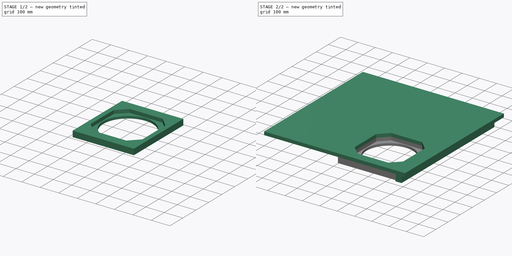
[diagram: build sequence overview — one tinted view per stage of 2, left to right]
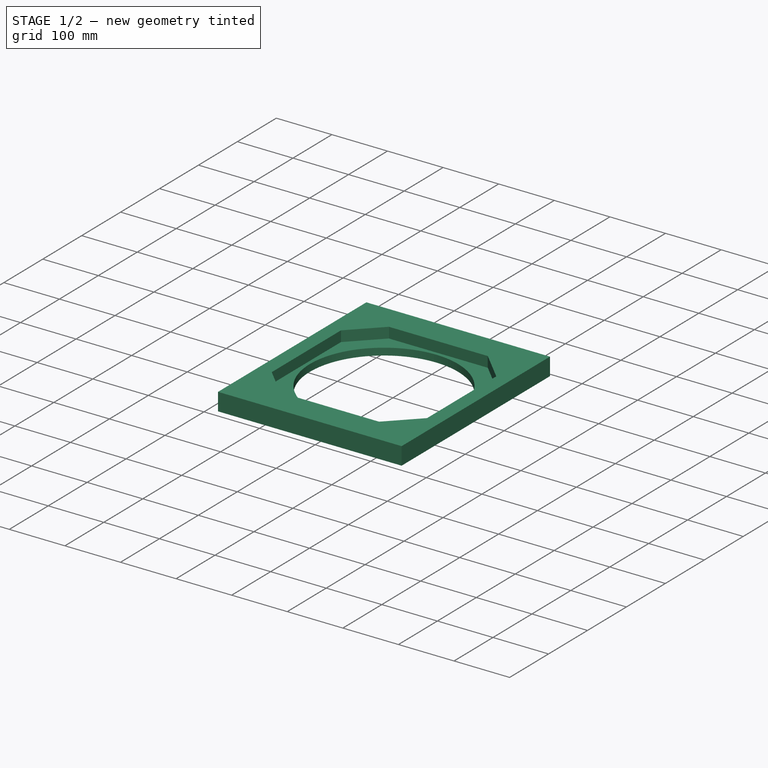
[diagram: stage 1 of 2 — iso view after this stage's code; geometry added in this stage tinted green]
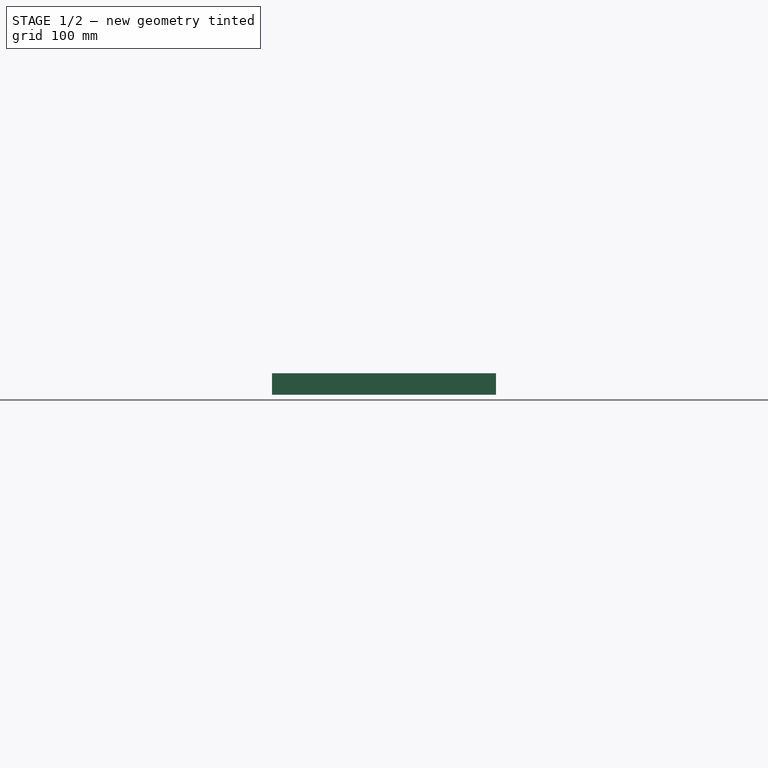
[diagram: stage 1 of 2 — front view after this stage's code; geometry added in this stage tinted green]
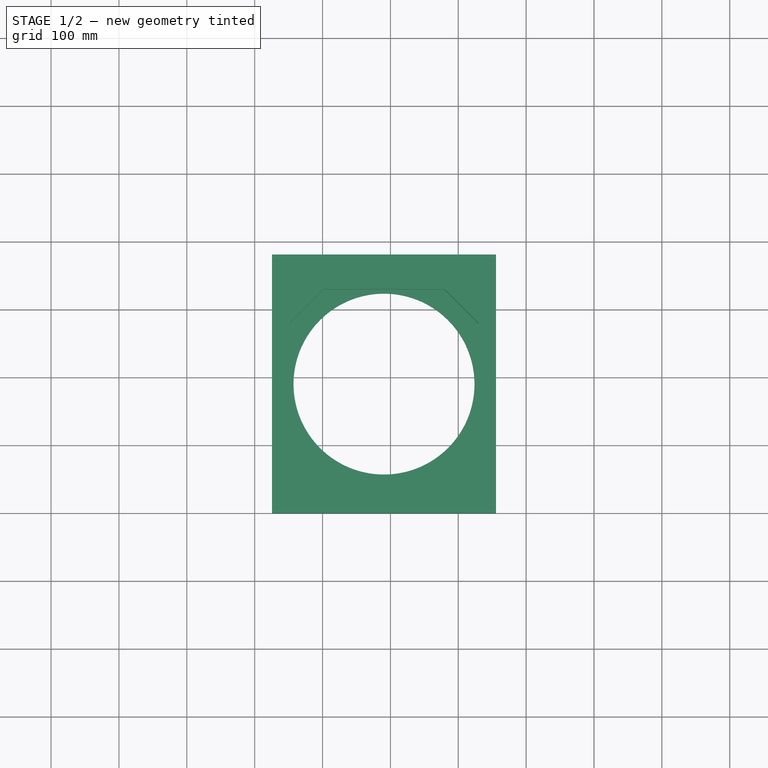
[diagram: stage 1 of 2 — top view after this stage's code; geometry added in this stage tinted green]
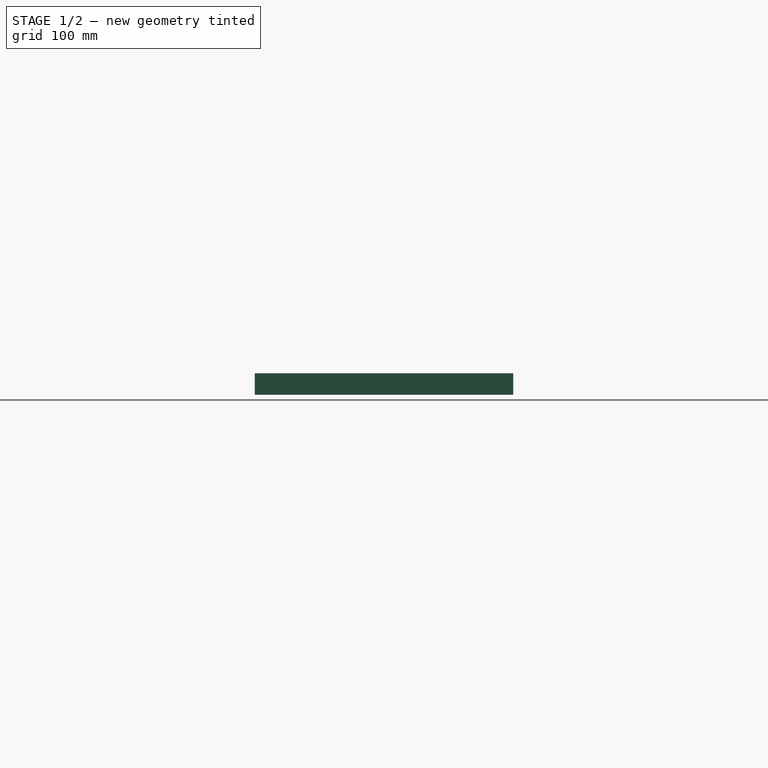
[diagram: stage 1 of 2 — right view after this stage's code; geometry added in this stage tinted green]
FCSTD DOCUMENT  (FreeCAD 0.19R)
Label: Inlet_Wall
License: Creative Commons Attribution
LicenseURL: http://creativecommons.org/licenses/by/4.0/
objects: App::Link×20, Sketcher::SketchObject×4, Part::Extrusion×4, Part::Feature×2, App::LinkGroup×2, App::DocumentObjectGroup×1
note: 10 computed .brp shape members not serialized (recipe doc carries the construction recipe); baked Part::Feature solids carry a one-line shape summary decoded from their .brp

FEATURE [Sketcher::SketchObject] Sketch005  label="Sketch_I_Fan_Mount"
  sketch-geometry (5):
    g0: LineSegment StartX=0 StartY=0 StartZ=0 EndX=330.2 EndY=0 EndZ=0
    g1: LineSegment StartX=330.2 StartY=0 StartZ=0 EndX=330.2 EndY=381 EndZ=0
    g2: LineSegment StartX=330.2 StartY=381 StartZ=0 EndX=0 EndY=381 EndZ=0
    g3: LineSegment StartX=0 StartY=381 StartZ=0 EndX=0 EndY=0 EndZ=0
    g4: Circle CenterX=165.1 CenterY=190.5 CenterZ=0 NormalX=0 NormalY=0 NormalZ=1 AngleXU=0 Radius=133.35
  constraints (13):
    c: Coincident(g0,g1)
    c: Coincident(g1,g2)
    c: Coincident(g2,g3)
    c: Coincident(g3,g0)
    c: Horizontal(g0)
    c: Horizontal(g2)
    c: Vertical(g1)
    c: Vertical(g3)
    c: Coincident(g0,g-1)
    c: DistanceY(g3,g3) = 381
    c: DistanceX(g0,g0) = 330.2
    c: Diameter(g4) = 266.7
    c: Symmetric(g0,g1,g4)
FEATURE [Part::Extrusion] Extrude005  label="Part_I_Fan_Mount"
  Base = -> Sketch005
  Dir = (0,0,1)
  DirMode = 2
  FaceMakerClass = Part::FaceMakerBullseye
  LengthFwd = 12.7
  LengthRev = 0
  Placement = pos=(755.65,0,-19.05) rot=(0,1,0;3.14159rad)
  Solid = true
  Symmetric = false
FEATURE [Sketcher::SketchObject] Sketch007  label="Sketch_H_Inlet_Wall001"
  sketch-geometry (12):
    g0: LineSegment StartX=0 StartY=0 StartZ=0 EndX=330.2 EndY=0 EndZ=0
    g1: LineSegment StartX=330.2 StartY=0 StartZ=0 EndX=330.2 EndY=381 EndZ=0
    g2: LineSegment StartX=330.2 StartY=381 StartZ=0 EndX=0 EndY=381 EndZ=0
    g3: LineSegment StartX=0 StartY=381 StartZ=0 EndX=0 EndY=0 EndZ=0
    g4: LineSegment StartX=304.8 StartY=101.6 StartZ=0 EndX=304.8 EndY=279.4 EndZ=0
    g5: LineSegment StartX=304.8 StartY=279.4 StartZ=0 EndX=254 EndY=330.2 EndZ=0
    g6: LineSegment StartX=254 StartY=330.2 StartZ=0 EndX=76.2 EndY=330.2 EndZ=0
    g7: LineSegment StartX=76.2 StartY=330.2 StartZ=0 EndX=25.4 EndY=279.4 EndZ=0
    g8: LineSegment StartX=25.4 StartY=279.4 StartZ=0 EndX=25.4 EndY=101.6 EndZ=0
    g9: LineSegment StartX=25.4 StartY=101.6 StartZ=0 EndX=76.2 EndY=50.8 EndZ=0
    g10: LineSegment StartX=76.2 StartY=50.8 StartZ=0 EndX=254 EndY=50.8 EndZ=0
    g11: LineSegment StartX=254 StartY=50.8 StartZ=0 EndX=304.8 EndY=101.6 EndZ=0
  constraints (35):
    c: Coincident(g0,g1)
    c: Coincident(g1,g2)
    c: Coincident(g2,g3)
    c: Coincident(g3,g0)
    c: Horizontal(g0)
    c: Horizontal(g2)
    c: Vertical(g1)
    c: Vertical(g3)
    c: Coincident(g0,g-1)
    c: DistanceX(g0,g0) = 330.2
    c: DistanceY(g3,g3) = 381
    c: Vertical(g4)
    c: Coincident(g4,g5)
    c: Coincident(g5,g6)
    c: Horizontal(g6)
    c: Coincident(g6,g7)
    c: Coincident(g7,g8)
    c: Vertical(g8)
    c: Coincident(g8,g9)
    c: Coincident(g9,g10)
    c: Horizontal(g10)
    c: Coincident(g10,g11)
    c: Coincident(g11,g4)
    c: DistanceX(g7,g4) = 279.4
    c: DistanceX(g4,g0) = 25.4
    c: DistanceY(g0,g10) = 50.8
    c: DistanceX(g8,g9) = 50.8
    c: Perpendicular(g11,g9)
    c: Equal(g6,g10)
    c: Equal(g10,g8)
    c: Equal(g8,g4)
    c: Equal(g7,g11)
    c: Equal(g11,g9)
    c: Equal(g9,g5)
    c: DistanceY(g9,g8) = 50.8
FEATURE [Part::Extrusion] Extrude007  label="Fan_Spacer"
  Base = -> Sketch007
  Dir = (0,0,1)
  DirMode = 2
  FaceMakerClass = Part::FaceMakerBullseye
  LengthFwd = 19.05
  LengthRev = 0
  Placement = pos=(755.65,0,4.26e-14) rot=(0,1,0;3.14159rad)
  Solid = true
  Symmetric = false
FEATURE [App::Link] Link  label="IF_A001"
  LinkPlacement = pos=(19.05,2.707e-13,2.27094e-06) rot=(-1,0,0;1.5708rad)
  LinkedObject = -> Extrude006
  Placement = pos=(19.05,2.707e-13,2.27094e-06) rot=(-1,0,0;1.5708rad)
FEATURE [Part::Feature] Screw_w_Washer_B
  Placement = pos=(38.1,25.4,19.05) rot=(0,1,0;3.14159rad)
  shape: bbox 15.88 x 15.88 x 50.8 mm, 35 faces (baked)
FEATURE [App::Link] Link001  label="Screw_w_Washer_B001"
  LinkPlacement = pos=(38.1,736.601,19.05) rot=(0,1,0;3.14159rad)
  LinkedObject = -> Screw_w_Washer_B
  Placement = pos=(38.1,736.601,19.05) rot=(0,1,0;3.14159rad)
FEATURE [App::Link] Link002  label="Screw_w_Washer_B002"
  LinkPlacement = pos=(38.1,152.4,19.05) rot=(1,0,0;3.14159rad)
  LinkedObject = -> Screw_w_Washer_B
  Placement = pos=(38.1,152.4,19.05) rot=(1,0,0;3.14159rad)
FEATURE [App::Link] Link003  label="Screw_w_Washer_B003"
  LinkPlacement = pos=(38.1,609.6,19.0501) rot=(1,0,0;3.14159rad)
  LinkedObject = -> Screw_w_Washer_B
  Placement = pos=(38.1,609.6,19.0501) rot=(1,0,0;3.14159rad)
FEATURE [App::Link] Link004  label="Screw_w_Washer_B004"
  LinkPlacement = pos=(38.1,304.8,19.05) rot=(0,1,0;3.14159rad)
  LinkedObject = -> Screw_w_Washer_B
  Placement = pos=(38.1,304.8,19.05) rot=(0,1,0;3.14159rad)
FEATURE [App::Link] Link005  label="Screw_w_Washer_B005"
  LinkPlacement = pos=(38.1,457.2,19.05) rot=(0,1,0;3.14159rad)
  LinkedObject = -> Screw_w_Washer_B
  Placement = pos=(38.1,457.2,19.05) rot=(0,1,0;3.14159rad)
FEATURE [App::Link] Link006  label="Screw_w_Washer_B006"
  LinkTransform = true
  LinkedObject = -> Screw_w_Washer_B
FEATURE [App::Link] Link007  label="Screw_w_Washer_B007"
  LinkTransform = true
  LinkedObject = -> Link001
FEATURE [App::Link] Link008  label="Screw_w_Washer_B008"
  LinkTransform = true
  LinkedObject = -> Link002
FEATURE [App::Link] Link009  label="Screw_w_Washer_B009"
  LinkTransform = true
  LinkedObject = -> Link003
FEATURE [App::Link] Link010  label="Screw_w_Washer_B010"
  LinkTransform = true
  LinkedObject = -> Link004
FEATURE [App::Link] Link011  label="Screw_w_Washer_B011"
  LinkTransform = true
  LinkedObject = -> Link005
FEATURE [App::LinkGroup] LinkGroup
  ElementList = -> [Link006,Link007,Link008,Link009,Link010,Link011]
  LinkMode = 1
  Placement = pos=(736.6,-6.10352e-05,0) rot=(0,0,1;0rad)
FEATURE [App::Link] Link012  label="Screw_w_Washer_B012"
  LinkPlacement = pos=(450.85,50.8,-31.75) rot=(0,0,1;0rad)
  LinkedObject = -> Screw_w_Washer_B
  Placement = pos=(450.85,50.8,-31.75) rot=(0,0,1;0rad)
FEATURE [App::Link] Link013  label="Screw_w_Washer_B013"
  LinkPlacement = pos=(590.55,355.6,-31.75) rot=(0,0,1;1.5708rad)
  LinkedObject = -> Screw_w_Washer_B
  Placement = pos=(590.55,355.6,-31.75) rot=(0,0,1;1.5708rad)
FEATURE [App::Link] Link014  label="Screw_w_Washer_B014"
  LinkPlacement = pos=(438.15,190.5,-31.75) rot=(0,0,1;3.14159rad)
  LinkedObject = -> Screw_w_Washer_B
  Placement = pos=(438.15,190.5,-31.75) rot=(0,0,1;3.14159rad)
FEATURE [App::Link] Link015  label="Screw_w_Washer_B015"
  LinkPlacement = pos=(450.85,330.2,-31.75) rot=(0,0,-1;1.5708rad)
  LinkedObject = -> Screw_w_Washer_B
  Placement = pos=(450.85,330.2,-31.75) rot=(0,0,-1;1.5708rad)
FEATURE [App::Link] Link016  label="Screw_w_Washer_B016"
  LinkPlacement = pos=(590.55,25.3999,-31.75) rot=(0,0,1;0rad)
  LinkedObject = -> Screw_w_Washer_B
  Placement = pos=(590.55,25.3999,-31.75) rot=(0,0,1;0rad)
FEATURE [App::Link] Link017  label="Screw_w_Washer_B017"
  LinkPlacement = pos=(730.25,50.7999,-31.75) rot=(0,0,1;1.5708rad)
  LinkedObject = -> Screw_w_Washer_B
  Placement = pos=(730.25,50.7999,-31.75) rot=(0,0,1;1.5708rad)
FEATURE [App::Link] Link018  label="Screw_w_Washer_B018"
  LinkPlacement = pos=(742.95,190.5,-31.75) rot=(0,0,1;3.14159rad)
  LinkedObject = -> Screw_w_Washer_B
  Placement = pos=(742.95,190.5,-31.75) rot=(0,0,1;3.14159rad)
FEATURE [App::Link] Link019  label="Screw_w_Washer_B019"
  LinkPlacement = pos=(730.25,330.2,-31.75) rot=(0,0,1;3.14159rad)
  LinkedObject = -> Screw_w_Washer_B
  Placement = pos=(730.25,330.2,-31.75) rot=(0,0,1;3.14159rad)
FEATURE [App::DocumentObjectGroup] Group
  Group = -> [Link012,Link013,Link014,Link015,Link016,Link017,Link018,Link019,Part__Feature,Extrude005,Extrude007]
FEATURE [App::LinkGroup] LinkGroup001
  ElementList = -> [Group]
  LinkMode = 0
  Placement = pos=(3.05176e-05,-0.000106812,6.67572e-05) rot=(0,0,1;0rad)
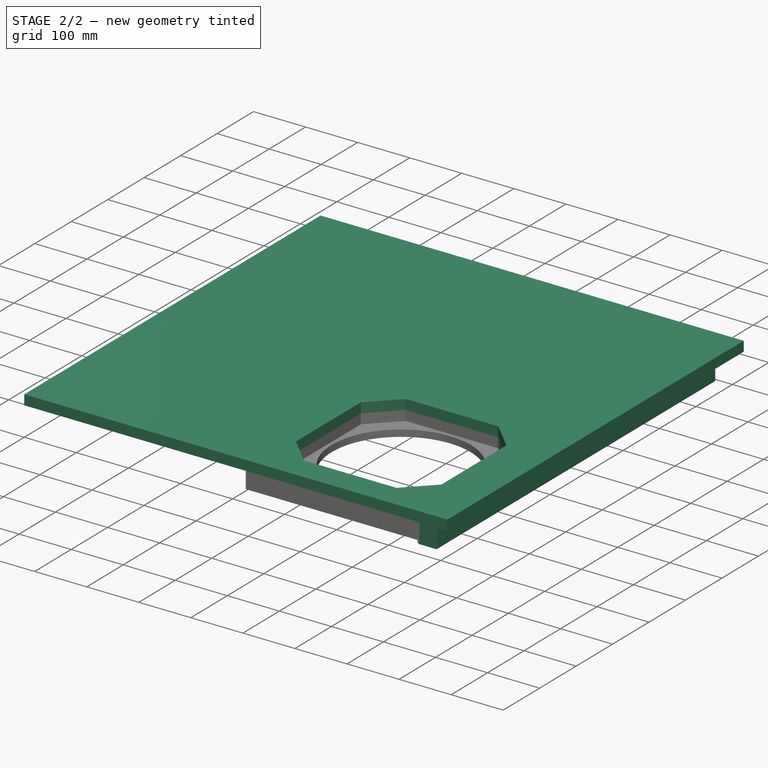
[diagram: stage 2 of 2 — iso view after this stage's code; geometry added in this stage tinted green]
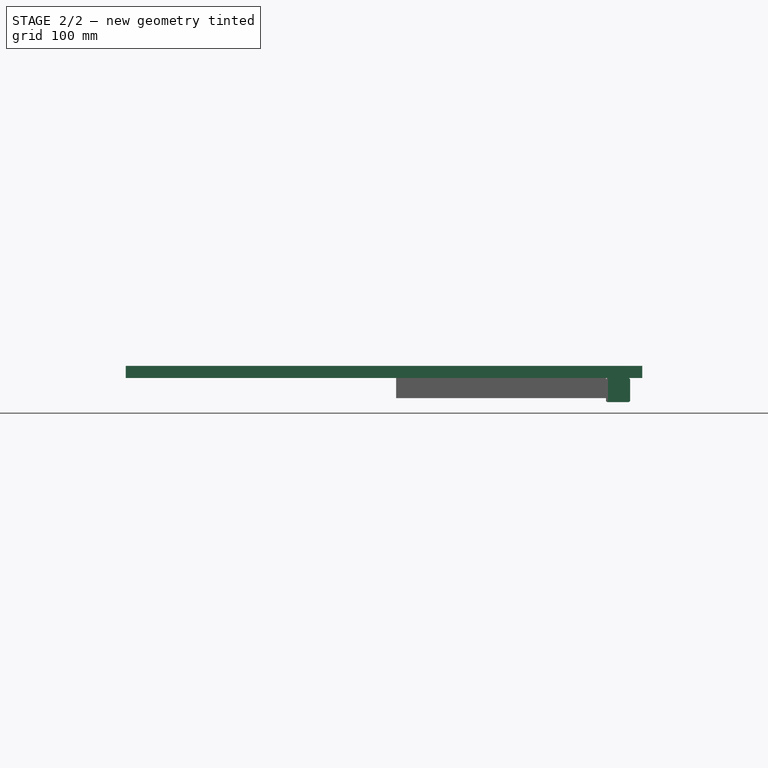
[diagram: stage 2 of 2 — front view after this stage's code; geometry added in this stage tinted green]
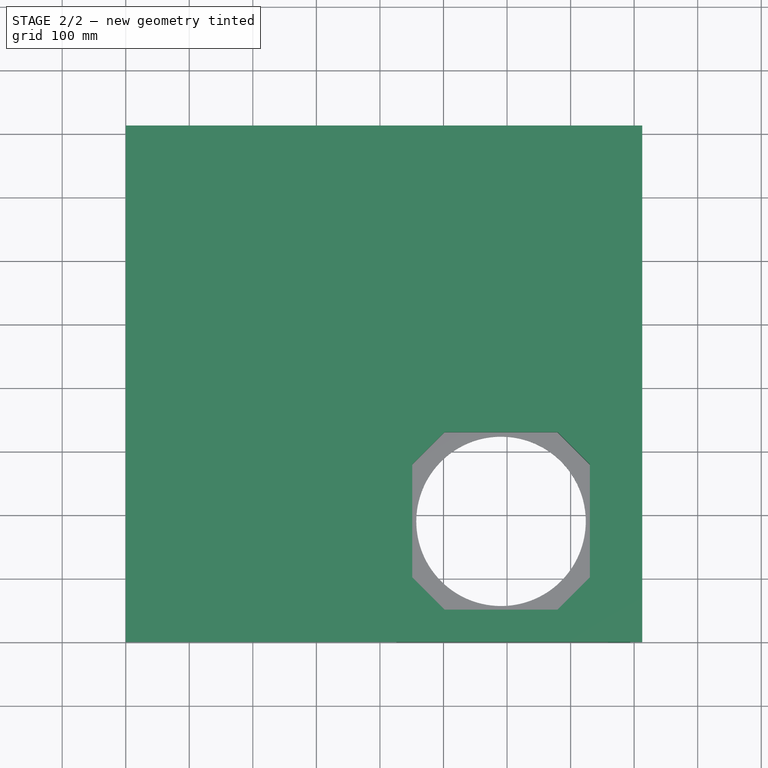
[diagram: stage 2 of 2 — top view after this stage's code; geometry added in this stage tinted green]
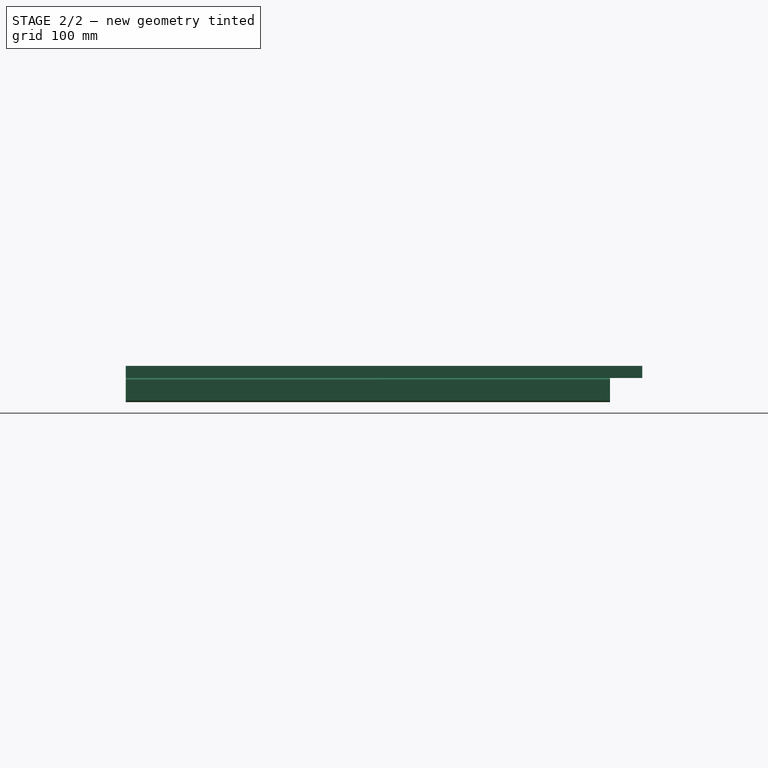
[diagram: stage 2 of 2 — right view after this stage's code; geometry added in this stage tinted green]
FEATURE [Sketcher::SketchObject] Sketch004  label="Sketch_H_Inlet_Wall"
  sketch-geometry (12):
    g0: LineSegment StartX=0 StartY=0 StartZ=0 EndX=812.8 EndY=0 EndZ=0
    g1: LineSegment StartX=812.8 StartY=0 StartZ=0 EndX=812.8 EndY=812.8 EndZ=0
    g2: LineSegment StartX=812.8 StartY=812.8 StartZ=0 EndX=0 EndY=812.8 EndZ=0
    g3: LineSegment StartX=0 StartY=812.8 StartZ=0 EndX=0 EndY=0 EndZ=0
    g4: LineSegment StartX=730.25 StartY=101.6 StartZ=0 EndX=730.25 EndY=279.4 EndZ=0
    g5: LineSegment StartX=730.25 StartY=279.4 StartZ=0 EndX=679.45 EndY=330.2 EndZ=0
    g6: LineSegment StartX=679.45 StartY=330.2 StartZ=0 EndX=501.65 EndY=330.2 EndZ=0
    g7: LineSegment StartX=501.65 StartY=330.2 StartZ=0 EndX=450.85 EndY=279.4 EndZ=0
    g8: LineSegment StartX=450.85 StartY=279.4 StartZ=0 EndX=450.85 EndY=101.6 EndZ=0
    g9: LineSegment StartX=450.85 StartY=101.6 StartZ=0 EndX=501.65 EndY=50.8 EndZ=0
    g10: LineSegment StartX=501.65 StartY=50.8 StartZ=0 EndX=679.45 EndY=50.8 EndZ=0
    g11: LineSegment StartX=679.45 StartY=50.8 StartZ=0 EndX=730.25 EndY=101.6 EndZ=0
  constraints (35):
    c: Coincident(g0,g1)
    c: Coincident(g1,g2)
    c: Coincident(g2,g3)
    c: Coincident(g3,g0)
    c: Horizontal(g0)
    c: Horizontal(g2)
    c: Vertical(g1)
    c: Vertical(g3)
    c: Coincident(g0,g-1)
    c: DistanceX(g0,g0) = 812.8
    c: DistanceY(g3,g3) = 812.8
    c: Vertical(g4)
    c: Coincident(g4,g5)
    c: Coincident(g5,g6)
    c: Horizontal(g6)
    c: Coincident(g6,g7)
    c: Coincident(g7,g8)
    c: Vertical(g8)
    c: Coincident(g8,g9)
    c: Coincident(g9,g10)
    c: Horizontal(g10)
    c: Coincident(g10,g11)
    c: Coincident(g11,g4)
    c: DistanceX(g4,g0) = 82.55
    c: DistanceY(g0,g10) = 50.8
    c: DistanceX(g8,g9) = 50.8
    c: Perpendicular(g7,g9)
    c: DistanceX(g8,g4) = 279.4
    c: Equal(g8,g6)
    c: Equal(g6,g4)
    c: Equal(g4,g10)
    c: Equal(g9,g7)
    c: Equal(g7,g5)
    c: Equal(g5,g11)
    c: DistanceY(g9,g8) = 50.8
FEATURE [Part::Extrusion] Extrude004  label="Part_H_Inlet_Wall"
  Base = -> Sketch004
  Dir = (0,0,1)
  DirMode = 2
  FaceMakerClass = Part::FaceMakerBullseye
  LengthFwd = 19.05
  LengthRev = 0
  Solid = true
  Symmetric = false
FEATURE [Part::Feature] Part__Feature  label="FAN_W2E250-HJ32-01"
  Placement = pos=(590.55,190.5,-19.05) rot=(1,0,0;1.5708rad)
  shape: bbox 300.2 x 295.3 x 80.4 mm, 902 faces, 0 solids (baked)
FEATURE [Sketcher::SketchObject] Sketch006  label="Sketch_2x2_rail"
  sketch-geometry (8):
    g0: LineSegment StartX=0 StartY=34.925 StartZ=0 EndX=0 EndY=3.175 EndZ=0
    g1: ArcOfCircle CenterX=3.175 CenterY=34.925 CenterZ=0 NormalX=0 NormalY=0 NormalZ=1 AngleXU=0 Radius=3.175 StartAngle=1.5708 EndAngle=3.14159
    g2: LineSegment StartX=3.175 StartY=38.1 StartZ=0 EndX=34.925 EndY=38.1 EndZ=0
    g3: ArcOfCircle CenterX=34.925 CenterY=34.925 CenterZ=0 NormalX=0 NormalY=0 NormalZ=1 AngleXU=0 Radius=3.175 StartAngle=4e-16 EndAngle=1.5708
    g4: LineSegment StartX=38.1 StartY=34.925 StartZ=0 EndX=38.1 EndY=3.175 EndZ=0
    g5: ArcOfCircle CenterX=34.925 CenterY=3.175 CenterZ=0 NormalX=0 NormalY=0 NormalZ=1 AngleXU=0 Radius=3.175 StartAngle=4.71239 EndAngle=6.28319
    g6: LineSegment StartX=34.925 StartY=0 StartZ=0 EndX=3.175 EndY=0 EndZ=0
    g7: ArcOfCircle CenterX=3.175 CenterY=3.175 CenterZ=0 NormalX=0 NormalY=0 NormalZ=1 AngleXU=0 Radius=3.175 StartAngle=3.14159 EndAngle=4.71239
  constraints (22):
    c: Vertical(g0)
    c: Tangent(g0,g1) = -1.5708
    c: Radius(g1) = 3.175
    c: Angle(g1) = 1.5708
    c: Coincident(g2,g1)
    c: Horizontal(g2)
    c: Tangent(g2,g3) = 1.5708
    c: Coincident(g4,g3)
    c: Vertical(g4)
    c: Tangent(g5,g4) = 1.5708
    c: Horizontal(g6)
    c: Tangent(g6,g5) = 1.5708
    c: Tangent(g7,g6) = 1.5708
    c: Tangent(g7,g0) = -1.5708
    c: Equal(g1,g7)
    c: Equal(g7,g3)
    c: Equal(g2,g0)
    c: Equal(g0,g6)
    c: Equal(g6,g4)
    c: PointOnObject(g-1,g0)
    c: PointOnObject(g6,g-1)
    c: DistanceX(g0,g4) = 38.1
FEATURE [Part::Extrusion] Extrude006  label="IF_A"
  Base = -> Sketch006
  Dir = (0,0,1)
  DirMode = 2
  FaceMakerClass = Part::FaceMakerBullseye
  LengthFwd = 762
  LengthRev = 0
  Placement = pos=(793.75,0,1e-14) rot=(0.57735,-0.57735,-0.57735;4.18879rad)
  Solid = true
  Symmetric = false
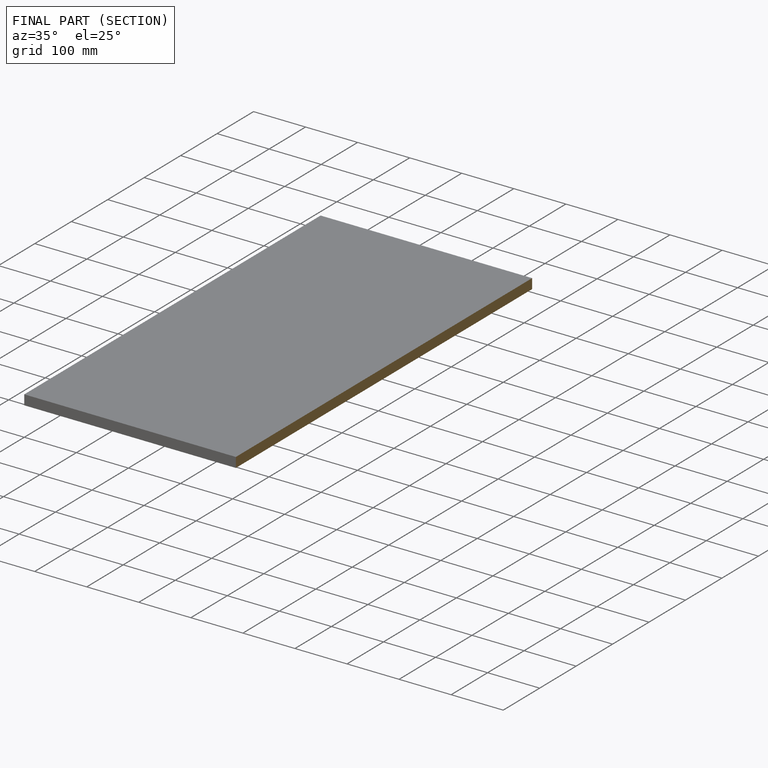
[diagram: finished part — half-section view (interior)]
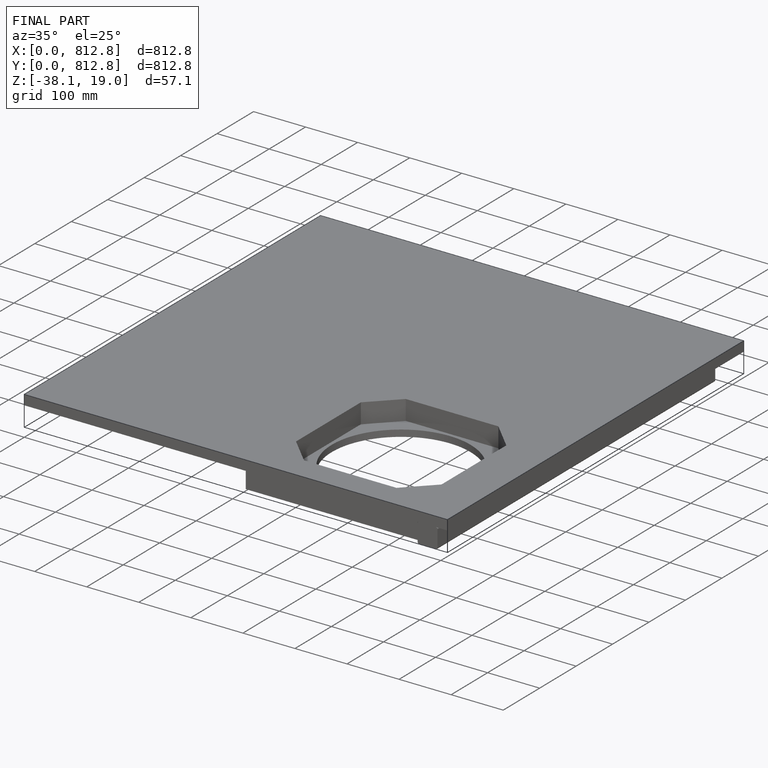
[diagram: finished part — iso view with bounding-box wireframe]
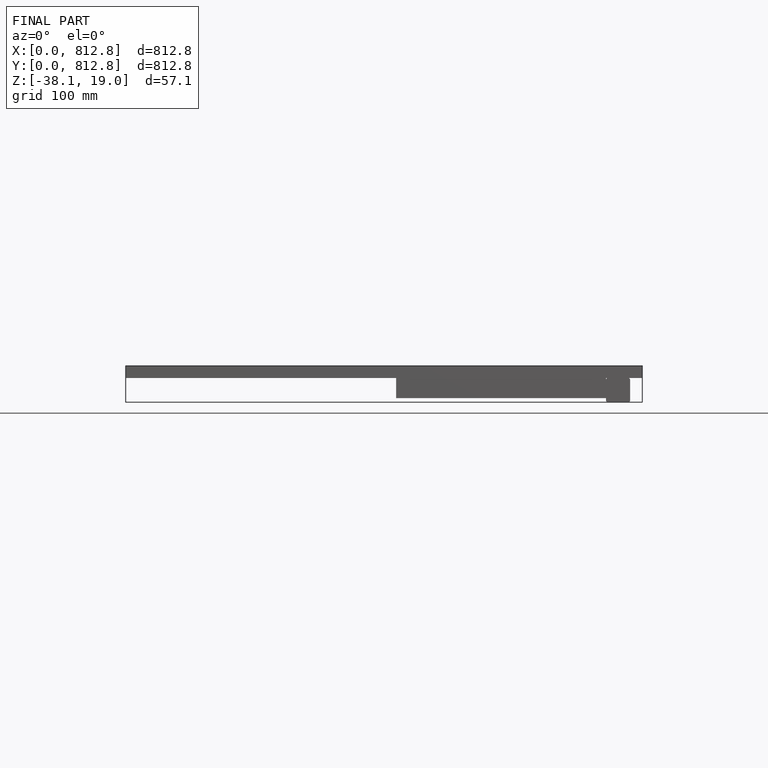
[diagram: finished part — front view with bounding-box wireframe]
